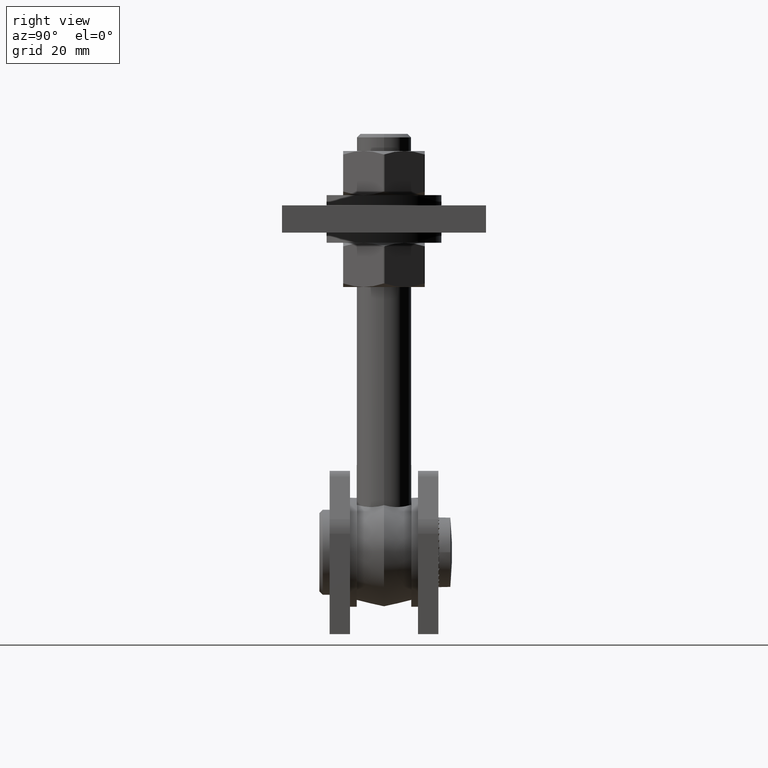
[diagram: clean part render]
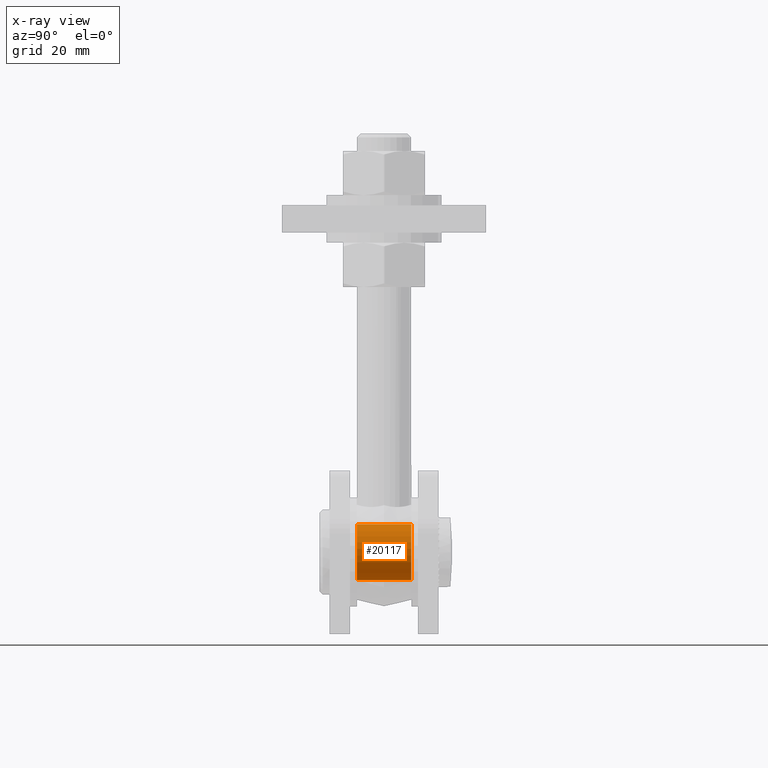
[diagram: x-ray — body ghosted, one internal face saturated and labeled with its STEP entity id]
A machine part, right view, then the same camera in x-ray: the body is ghosted and one INTERNAL B-rep face — a face not visible from any outside direction — is saturated and labeled: STEP entity #20117.
In plain terms, the highlighted cylindrical surface (bore or boss wall) has radius 8.25 mm, axis along (0, 1, 0).
Its self-contained STEP definition (entity closure, byte-faithful):
#662 = VERTEX_POINT ( 'NONE', #6070 ) ;
#1746 = AXIS2_PLACEMENT_3D ( 'NONE', #19536, #9268, #2514 ) ;
#2085 = EDGE_CURVE ( 'NONE', #662, #662, #19909, .T. ) ;
#2183 = EDGE_LOOP ( 'NONE', ( #17484 ) ) ;
#2318 = CARTESIAN_POINT ( 'NONE',  ( 0.000000000000000000, 8.000000000000001776, -9.184850993605147944E-16 ) ) ;
#2514 = DIRECTION ( 'NONE',  ( 0.000000000000000000, 0.000000000000000000, 1.000000000000000000 ) ) ;
#2897 = CARTESIAN_POINT ( 'NONE',  ( 0.000000000000000000, -8.000000000000000000, -9.184850993605147944E-16 ) ) ;
#3456 = CIRCLE ( 'NONE', #9043, 8.250000000000000000 ) ;
#6070 = CARTESIAN_POINT ( 'NONE',  ( 0.000000000000000000, 8.000000000000001776, 8.249999999999998224 ) ) ;
#6435 = CARTESIAN_POINT ( 'NONE',  ( 0.000000000000000000, -8.000000000000000000, 8.249999999999998224 ) ) ;
#6895 = EDGE_LOOP ( 'NONE', ( #12011 ) ) ;
#8508 = FACE_OUTER_BOUND ( 'NONE', #6895, .T. ) ;
#9043 = AXIS2_PLACEMENT_3D ( 'NONE', #2897, #15012, #20190 ) ;
#9268 = DIRECTION ( 'NONE',  ( -0.000000000000000000, 1.000000000000000000, -0.000000000000000000 ) ) ;
#9289 = CYLINDRICAL_SURFACE ( 'NONE', #1746, 8.250000000000000000 ) ;
#12011 = ORIENTED_EDGE ( 'NONE', *, *, #16755, .F. ) ;
#14338 = DIRECTION ( 'NONE',  ( -0.000000000000000000, 1.000000000000000000, -0.000000000000000000 ) ) ;
#15012 = DIRECTION ( 'NONE',  ( -0.000000000000000000, 1.000000000000000000, -0.000000000000000000 ) ) ;
#16577 = FACE_OUTER_BOUND ( 'NONE', #2183, .T. ) ;
#16755 = EDGE_CURVE ( 'NONE', #18120, #18120, #3456, .T. ) ;
#17484 = ORIENTED_EDGE ( 'NONE', *, *, #2085, .T. ) ;
#18120 = VERTEX_POINT ( 'NONE', #6435 ) ;
#19509 = AXIS2_PLACEMENT_3D ( 'NONE', #2318, #14338, #21184 ) ;
#19536 = CARTESIAN_POINT ( 'NONE',  ( 0.000000000000000000, 8.000000000000000000, -9.184850993605147944E-16 ) ) ;
#19909 = CIRCLE ( 'NONE', #19509, 8.250000000000000000 ) ;
#20117 = ADVANCED_FACE ( 'NONE', ( #8508, #16577 ), #9289, .F. ) ;
#20190 = DIRECTION ( 'NONE',  ( 0.000000000000000000, 0.000000000000000000, 1.000000000000000000 ) ) ;
#21184 = DIRECTION ( 'NONE',  ( 0.000000000000000000, 0.000000000000000000, 1.000000000000000000 ) ) ;